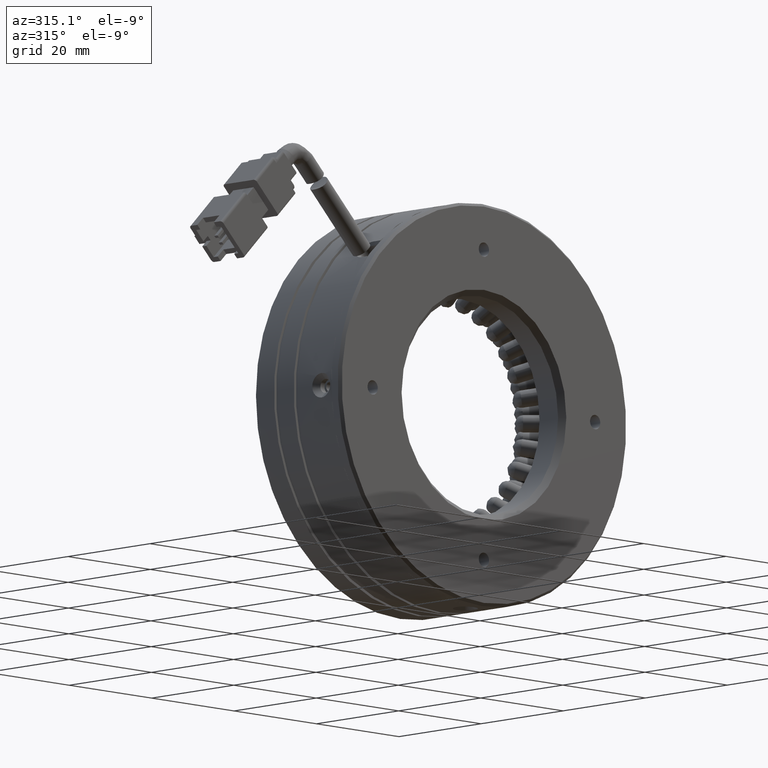
[diagram: clean part render]
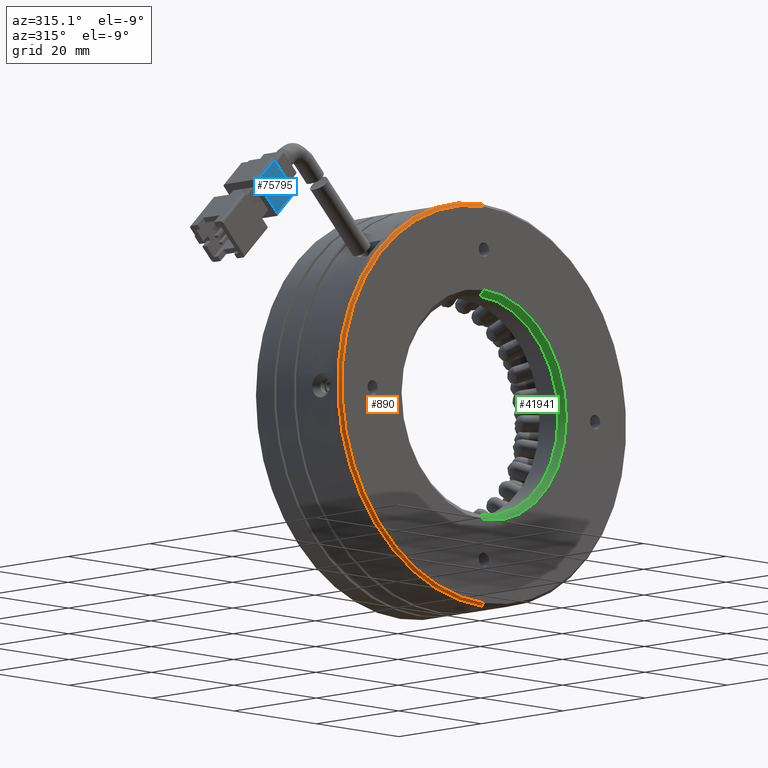
[diagram: same view with three faces highlighted in distinct colors, each labeled with its STEP entity id]
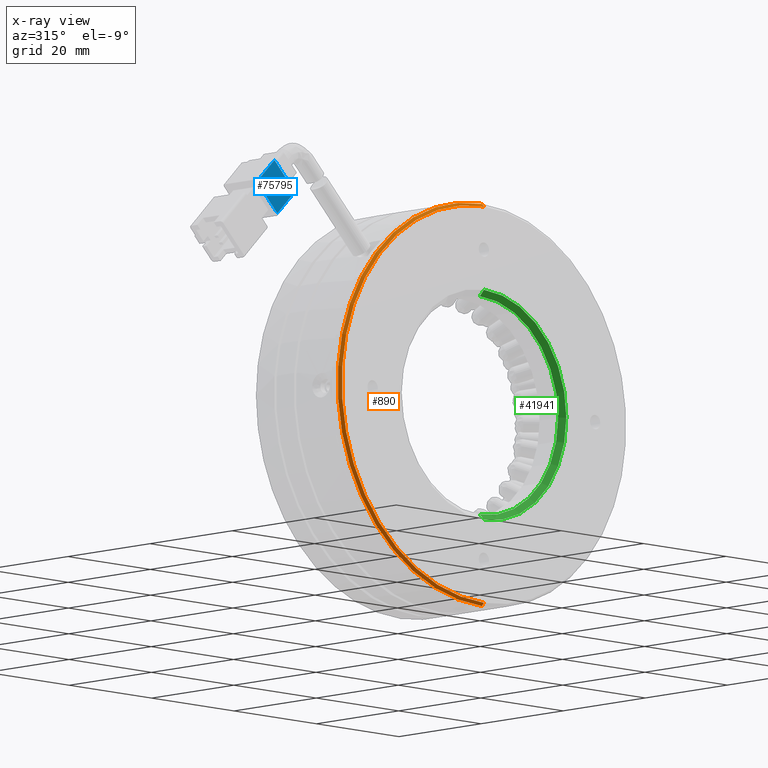
[diagram: x-ray of the same camera — body ghosted, the three highlighted faces saturated]
A machine part, auxiliary view with three faces highlighted in distinct colors.
The next image is the same camera in x-ray (body ghosted, the three faces saturated) — at least one of them is partly hidden behind the body in this view.
Their STEP definitions:

[orange] entity #890 — the highlighted conical surface has half-angle 45 deg.
#19 = EDGE_CURVE ( 'NONE', #12799, #15537, #56995, .T. ) ;
#890 = ADVANCED_FACE ( 'NONE', ( #12518 ), #73281, .T. ) ;
#4326 = CARTESIAN_POINT ( 'NONE',  ( -2.716071020391490200, -3.692728664891308000, -34.50000000000002800 ) ) ;
#8807 = CARTESIAN_POINT ( 'NONE',  ( -2.716071020391494600, -3.192728664891349300, -35.00000000000000000 ) ) ;
#12518 = FACE_OUTER_BOUND ( 'NONE', #26624, .T. ) ;
#12799 = VERTEX_POINT ( 'NONE', #65467 ) ;
#15537 = VERTEX_POINT ( 'NONE', #8807 ) ;
#16436 = EDGE_CURVE ( 'NONE', #25253, #64099, #49624, .T. ) ;
#19753 = DIRECTION ( 'NONE',  ( -0.0000000000000000000, -1.000000000000000000, -0.0000000000000000000 ) ) ;
#21081 = ORIENTED_EDGE ( 'NONE', *, *, #86588, .T. ) ;
#21989 = LINE ( 'NONE', #46841, #71155 ) ;
#25253 = VERTEX_POINT ( 'NONE', #4326 ) ;
#26624 = EDGE_LOOP ( 'NONE', ( #67640, #51166, #21081, #62921 ) ) ;
#27381 = DIRECTION ( 'NONE',  ( -0.0000000000000000000, 1.000000000000000000, 0.0000000000000000000 ) ) ;
#28805 = DIRECTION ( 'NONE',  ( 0.0000000000000000000, 0.0000000000000000000, 1.000000000000000000 ) ) ;
#29550 = DIRECTION ( 'NONE',  ( 0.0000000000000000000, 0.0000000000000000000, 1.000000000000000000 ) ) ;
#36769 = CARTESIAN_POINT ( 'NONE',  ( -2.716071020391494600, -3.192728664891349300, 0.0000000000000000000 ) ) ;
#42133 = CARTESIAN_POINT ( 'NONE',  ( -2.716071020391494600, -3.692728664891308000, 34.50000000000002800 ) ) ;
#42731 = CARTESIAN_POINT ( 'NONE',  ( -2.716071020391494600, -3.192728664891349300, 0.0000000000000000000 ) ) ;
#46841 = CARTESIAN_POINT ( 'NONE',  ( -2.716071020391494600, -3.192728664891349300, 35.00000000000000000 ) ) ;
#49624 = CIRCLE ( 'NONE', #57791, 34.50000000000002800 ) ;
#51166 = ORIENTED_EDGE ( 'NONE', *, *, #16436, .T. ) ;
#52146 = DIRECTION ( 'NONE',  ( 8.659560562355054900E-017, 0.7071067811865376900, -0.7071067811865574500 ) ) ;
#53572 = DIRECTION ( 'NONE',  ( 0.0000000000000000000, 0.7071067811865376900, 0.7071067811865574500 ) ) ;
#56531 = VECTOR ( 'NONE', #52146, 999.9999999999998900 ) ;
#56995 = CIRCLE ( 'NONE', #57342, 35.00000000000000000 ) ;
#57342 = AXIS2_PLACEMENT_3D ( 'NONE', #36769, #19753, #28805 ) ;
#57791 = AXIS2_PLACEMENT_3D ( 'NONE', #67428, #27381, #74254 ) ;
#62921 = ORIENTED_EDGE ( 'NONE', *, *, #19, .T. ) ;
#64099 = VERTEX_POINT ( 'NONE', #42133 ) ;
#65467 = CARTESIAN_POINT ( 'NONE',  ( -2.716071020391490200, -3.192728664891349300, 35.00000000000000000 ) ) ;
#67428 = CARTESIAN_POINT ( 'NONE',  ( -2.716071020391494600, -3.692728664891308000, 0.0000000000000000000 ) ) ;
#67640 = ORIENTED_EDGE ( 'NONE', *, *, #75888, .F. ) ;
#71155 = VECTOR ( 'NONE', #53572, 999.9999999999998900 ) ;
#72068 = CARTESIAN_POINT ( 'NONE',  ( -2.716071020391490200, -3.192728664891349300, -35.00000000000000000 ) ) ;
#73281 = CONICAL_SURFACE ( 'NONE', #84506, 35.00000000000000000, 0.7853981633974621600 ) ;
#74254 = DIRECTION ( 'NONE',  ( 0.0000000000000000000, 0.0000000000000000000, 1.000000000000000000 ) ) ;
#74410 = LINE ( 'NONE', #72068, #56531 ) ;
#75888 = EDGE_CURVE ( 'NONE', #25253, #15537, #74410, .T. ) ;
#76146 = DIRECTION ( 'NONE',  ( -0.0000000000000000000, 1.000000000000000000, 0.0000000000000000000 ) ) ;
#84506 = AXIS2_PLACEMENT_3D ( 'NONE', #42731, #76146, #29550 ) ;
#86588 = EDGE_CURVE ( 'NONE', #64099, #12799, #21989, .T. ) ;

[blue] entity #75795 — the highlighted planar face has unit normal (-0, 1, 0).
#1089 = FACE_OUTER_BOUND ( 'NONE', #22337, .T. ) ;
#4648 = EDGE_CURVE ( 'NONE', #67636, #36524, #73177, .T. ) ;
#7239 = DIRECTION ( 'NONE',  ( 0.7071067811865440200, 2.478176394252581100E-016, -0.7071067811865511300 ) ) ;
#8192 = VECTOR ( 'NONE', #86957, 999.9999999999998900 ) ;
#14261 = CARTESIAN_POINT ( 'NONE',  ( -52.56709909404290900, -2.692728664891304500, 37.12310601229401600 ) ) ;
#17408 = DIRECTION ( 'NONE',  ( -1.062980087548406100E-016, 1.000000000000000000, 2.441690579156441100E-016 ) ) ;
#17644 = EDGE_CURVE ( 'NONE', #78861, #50154, #33961, .T. ) ;
#21857 = VECTOR ( 'NONE', #7239, 999.9999999999998900 ) ;
#22337 = EDGE_LOOP ( 'NONE', ( #56660, #60062, #44277, #48394 ) ) ;
#25301 = CARTESIAN_POINT ( 'NONE',  ( -47.61735162573709300, -2.692728664891303600, 32.17335854398815100 ) ) ;
#33961 = LINE ( 'NONE', #61719, #85323 ) ;
#36524 = VERTEX_POINT ( 'NONE', #81187 ) ;
#39992 = CARTESIAN_POINT ( 'NONE',  ( -51.85999231285638400, -2.692728664891301800, 27.93071785686890600 ) ) ;
#41078 = LINE ( 'NONE', #25301, #74639 ) ;
#44277 = ORIENTED_EDGE ( 'NONE', *, *, #56192, .F. ) ;
#48394 = ORIENTED_EDGE ( 'NONE', *, *, #17644, .F. ) ;
#50154 = VERTEX_POINT ( 'NONE', #57934 ) ;
#50426 = PLANE ( 'NONE',  #70151 ) ;
#54983 = DIRECTION ( 'NONE',  ( -0.7071067811865441300, -7.511771070445273300E-017, 0.7071067811865510100 ) ) ;
#56192 = EDGE_CURVE ( 'NONE', #50154, #67636, #79479, .T. ) ;
#56660 = ORIENTED_EDGE ( 'NONE', *, *, #64909, .F. ) ;
#57418 = CARTESIAN_POINT ( 'NONE',  ( -52.56709909404290900, -2.692728664891304500, 37.12310601229401600 ) ) ;
#57934 = CARTESIAN_POINT ( 'NONE',  ( -56.80973978116219300, -2.692728664891301800, 32.88046532517476100 ) ) ;
#59943 = CARTESIAN_POINT ( 'NONE',  ( -52.56709909404289500, -2.692728664891304500, 37.12310601229400200 ) ) ;
#60062 = ORIENTED_EDGE ( 'NONE', *, *, #4648, .F. ) ;
#61719 = CARTESIAN_POINT ( 'NONE',  ( -51.85999231285637000, -2.692728664891300900, 27.93071785686889900 ) ) ;
#64156 = DIRECTION ( 'NONE',  ( -0.7071067811865440200, -2.478176394252581100E-016, 0.7071067811865511300 ) ) ;
#64909 = EDGE_CURVE ( 'NONE', #36524, #78861, #41078, .T. ) ;
#65597 = DIRECTION ( 'NONE',  ( -0.7071067811865511300, 9.748955379090674100E-017, -0.7071067811865440200 ) ) ;
#67636 = VERTEX_POINT ( 'NONE', #85868 ) ;
#70151 = AXIS2_PLACEMENT_3D ( 'NONE', #57418, #17408, #64156 ) ;
#73177 = LINE ( 'NONE', #14261, #21857 ) ;
#74639 = VECTOR ( 'NONE', #65597, 999.9999999999998900 ) ;
#75795 = ADVANCED_FACE ( 'NONE', ( #1089 ), #50426, .F. ) ;
#78861 = VERTEX_POINT ( 'NONE', #39992 ) ;
#79479 = LINE ( 'NONE', #59943, #8192 ) ;
#81187 = CARTESIAN_POINT ( 'NONE',  ( -47.61735162573708600, -2.692728664891303600, 32.17335854398815100 ) ) ;
#85323 = VECTOR ( 'NONE', #54983, 999.9999999999998900 ) ;
#85868 = CARTESIAN_POINT ( 'NONE',  ( -52.56709909404290200, -2.692728664891304500, 37.12310601229400900 ) ) ;
#86957 = DIRECTION ( 'NONE',  ( 0.7071067811865511300, -9.748955379090674100E-017, 0.7071067811865440200 ) ) ;

[green] entity #41941 — the highlighted conical surface has half-angle 45 deg.
#143 = CIRCLE ( 'NONE', #41368, 18.99999999999999600 ) ;
#1499 = DIRECTION ( 'NONE',  ( 0.0000000000000000000, -1.000000000000000000, 0.0000000000000000000 ) ) ;
#4523 = DIRECTION ( 'NONE',  ( 0.0000000000000000000, 0.0000000000000000000, -1.000000000000000000 ) ) ;
#4624 = ORIENTED_EDGE ( 'NONE', *, *, #26358, .F. ) ;
#9742 = DIRECTION ( 'NONE',  ( 0.0000000000000000000, -1.000000000000000000, 0.0000000000000000000 ) ) ;
#15364 = CARTESIAN_POINT ( 'NONE',  ( -2.716071020391492400, -2.692728664891314200, 18.99999999999999600 ) ) ;
#17679 = CARTESIAN_POINT ( 'NONE',  ( -2.716071020391494600, -3.692728664891308000, -20.00000000000001800 ) ) ;
#18030 = VERTEX_POINT ( 'NONE', #60776 ) ;
#18287 = CARTESIAN_POINT ( 'NONE',  ( -2.716071020391492000, -3.692728664891308000, 20.00000000000001800 ) ) ;
#19152 = AXIS2_PLACEMENT_3D ( 'NONE', #49819, #9742, #56547 ) ;
#19422 = EDGE_LOOP ( 'NONE', ( #4624, #49109, #37057, #70505 ) ) ;
#20110 = DIRECTION ( 'NONE',  ( 0.0000000000000000000, -0.7071067811865376900, -0.7071067811865574500 ) ) ;
#22014 = CARTESIAN_POINT ( 'NONE',  ( -2.716071020391492000, -3.692728664891308000, 20.00000000000001800 ) ) ;
#25121 = AXIS2_PLACEMENT_3D ( 'NONE', #81763, #1499, #75292 ) ;
#26358 = EDGE_CURVE ( 'NONE', #63289, #66089, #60902, .T. ) ;
#28863 = CIRCLE ( 'NONE', #19152, 20.00000000000001800 ) ;
#33122 = EDGE_CURVE ( 'NONE', #18030, #70802, #47965, .T. ) ;
#37057 = ORIENTED_EDGE ( 'NONE', *, *, #33122, .T. ) ;
#41005 = VECTOR ( 'NONE', #65002, 999.9999999999998900 ) ;
#41368 = AXIS2_PLACEMENT_3D ( 'NONE', #84811, #44659, #4523 ) ;
#41941 = ADVANCED_FACE ( 'NONE', ( #75828 ), #49549, .F. ) ;
#44659 = DIRECTION ( 'NONE',  ( 0.0000000000000000000, -1.000000000000000000, 0.0000000000000000000 ) ) ;
#45873 = VECTOR ( 'NONE', #20110, 999.9999999999998900 ) ;
#46696 = EDGE_CURVE ( 'NONE', #18030, #63289, #143, .T. ) ;
#47965 = LINE ( 'NONE', #73682, #45873 ) ;
#49109 = ORIENTED_EDGE ( 'NONE', *, *, #46696, .F. ) ;
#49549 = CONICAL_SURFACE ( 'NONE', #25121, 20.00000000000001800, 0.7853981633974621600 ) ;
#49819 = CARTESIAN_POINT ( 'NONE',  ( -2.716071020391494600, -3.692728664891308000, 0.0000000000000000000 ) ) ;
#50611 = EDGE_CURVE ( 'NONE', #70802, #66089, #28863, .T. ) ;
#56547 = DIRECTION ( 'NONE',  ( 0.0000000000000000000, 0.0000000000000000000, -1.000000000000000000 ) ) ;
#60776 = CARTESIAN_POINT ( 'NONE',  ( -2.716071020391494600, -2.692728664891314200, -18.99999999999999600 ) ) ;
#60902 = LINE ( 'NONE', #18287, #41005 ) ;
#63289 = VERTEX_POINT ( 'NONE', #15364 ) ;
#65002 = DIRECTION ( 'NONE',  ( 8.659560562355054900E-017, -0.7071067811865376900, 0.7071067811865574500 ) ) ;
#66089 = VERTEX_POINT ( 'NONE', #22014 ) ;
#70505 = ORIENTED_EDGE ( 'NONE', *, *, #50611, .T. ) ;
#70802 = VERTEX_POINT ( 'NONE', #17679 ) ;
#73682 = CARTESIAN_POINT ( 'NONE',  ( -2.716071020391494600, -3.692728664891308000, -20.00000000000001800 ) ) ;
#75292 = DIRECTION ( 'NONE',  ( 0.0000000000000000000, 0.0000000000000000000, -1.000000000000000000 ) ) ;
#75828 = FACE_OUTER_BOUND ( 'NONE', #19422, .T. ) ;
#81763 = CARTESIAN_POINT ( 'NONE',  ( -2.716071020391494600, -3.692728664891308000, 0.0000000000000000000 ) ) ;
#84811 = CARTESIAN_POINT ( 'NONE',  ( -2.716071020391494600, -2.692728664891314200, 0.0000000000000000000 ) ) ;